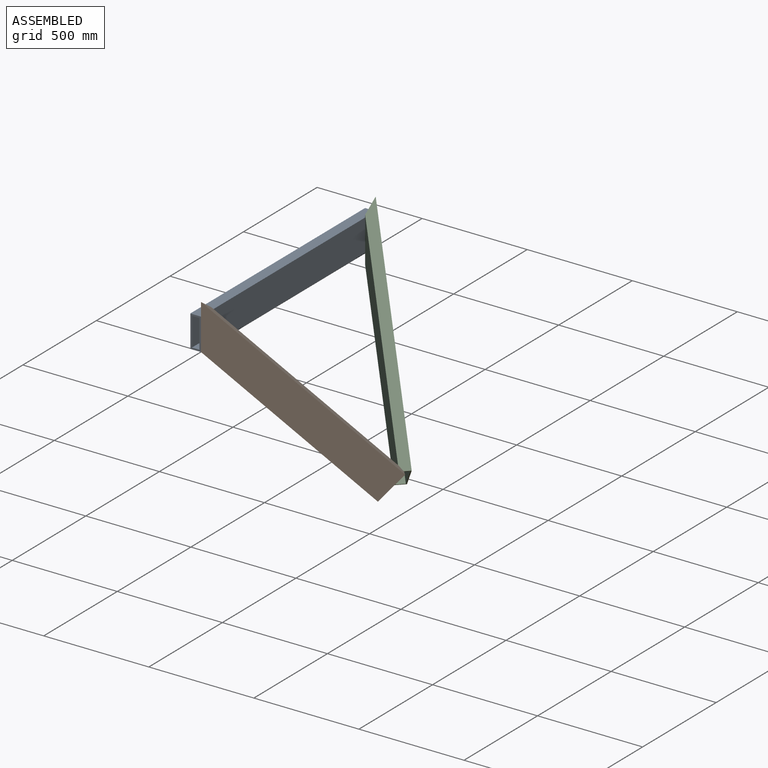
[diagram: assembled view]
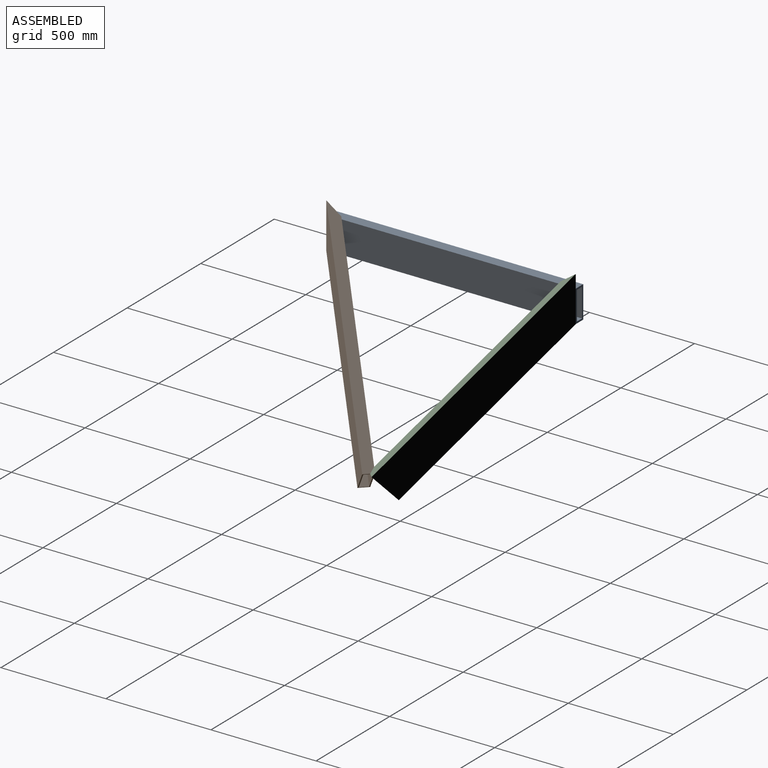
[diagram: assembled view, second angle]
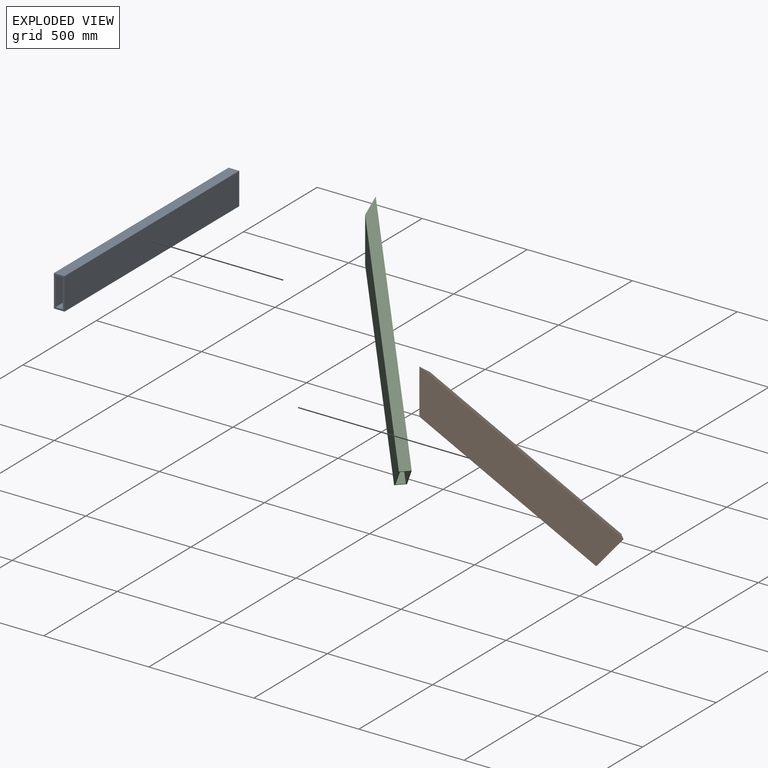
[diagram: exploded view]
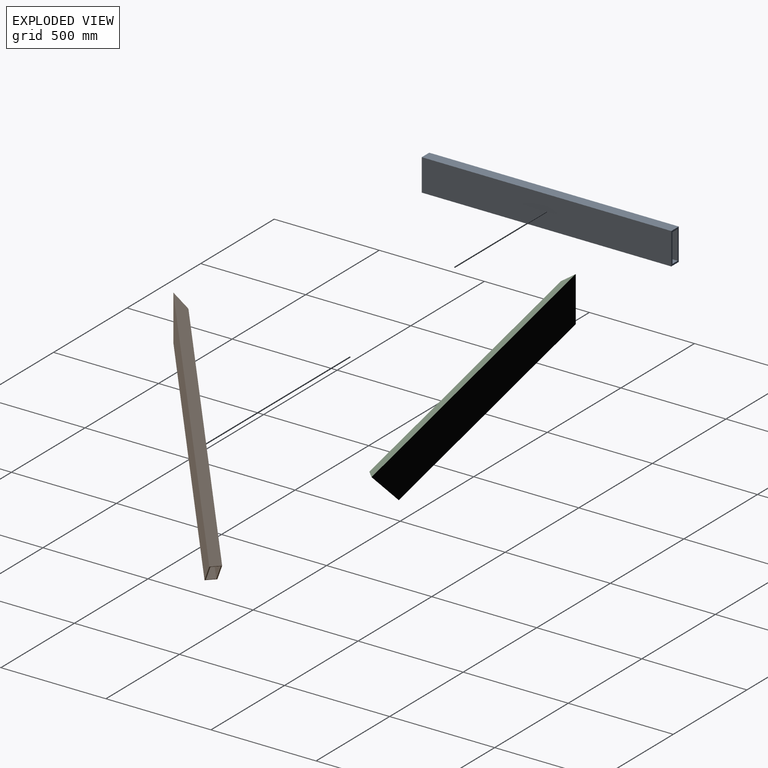
[diagram: exploded view, second angle]
ASSEMBLY  parts=3 mates=2
PART A: 10 faces, bbox 50.8x1187.5x152.4 mm
  f0: plane 152.4x50.8mm, normal (0,-1,0), area 2973.8mm2, adj f2,f3,f4,f5,f6,f7,f8,f9
  f1: plane 152.4x50.8mm, normal (0,1,0), area 2973.8mm2, adj f2,f3,f4,f5,f6,f7,f8,f9
  f2: plane 1187.45x50.8mm, normal (0,0,-1), area 60322.5mm2, adj f0,f1,f3,f5
  f3: plane 1187.45x152.4mm, normal (1,0,0), area 180967.4mm2, adj f0,f1,f2,f4
  f4: plane 1187.45x50.8mm, normal (0,0,1), area 60322.5mm2, adj f0,f1,f3,f5
  f5: plane 1187.45x152.4mm, normal (-1,0,0), area 180967.4mm2, adj f0,f1,f2,f4
  f6: plane 1187.45x34.93mm, normal (0,0,1), area 41471.7mm2, adj f0,f1,f7,f9
  f7: plane 1187.45x136.53mm, normal (-1,0,0), area 162116.6mm2, adj f0,f1,f6,f8
  f8: plane 1187.45x34.93mm, normal (0,0,-1), area 41471.7mm2, adj f0,f1,f7,f9
  f9: plane 1187.45x136.53mm, normal (1,0,0), area 162116.6mm2, adj f0,f1,f6,f8
PART B: 10 faces, bbox 50.8x1143x152.4 mm
  f0: plane 152.4x50.8mm, normal (0,-1,0), area 1844.8mm2, adj f2,f3,f4,f5,f6,f7,f8,f9
  f1: plane 224.24x152.4mm, normal (0.71,0.5,-0.5), area 3689.5mm2, adj f2,f3,f4,f5,f6,f7,f8,f9
  f2: plane 990.6x50.8mm, normal (0,0,-1), area 48497.7mm2, adj f0,f1,f3,f5
  f3: plane 1071.16x152.4mm, normal (1,0,0), area 151631.6mm2, adj f0,f1,f2,f4
  f4: plane 1143x50.8mm, normal (0,0,1), area 56239.6mm2, adj f0,f1,f3,f5
  f5: plane 1143x152.4mm, normal (-1,0,0), area 162580.3mm2, adj f0,f1,f2,f4
  f6: plane 988.63x41.28mm, normal (0,0,1), area 39600.9mm2, adj f0,f1,f7,f9
  f7: plane 1073.13x142.88mm, normal (-1,0,0), area 143116.9mm2, adj f0,f1,f6,f8
  f8: plane 1131.5x41.28mm, normal (0,0,-1), area 45498.1mm2, adj f0,f1,f7,f9
  f9: plane 1131.5x142.88mm, normal (1,0,0), area 151456.8mm2, adj f0,f1,f6,f8
PART C: 10 faces, bbox 50.8x1143x152.4 mm
  f0: plane 152.4x50.8mm, normal (0,1,0), area 1844.8mm2, adj f2,f3,f4,f5,f6,f7,f8,f9
  f1: plane 224.24x152.4mm, normal (0.71,-0.5,-0.5), area 3689.5mm2, adj f2,f3,f4,f5,f6,f7,f8,f9
  f2: plane 990.6x50.8mm, normal (0,0,-1), area 48497.7mm2, adj f0,f1,f3,f5
  f3: plane 1071.16x152.4mm, normal (1,0,0), area 151631.6mm2, adj f0,f1,f2,f4
  f4: plane 1143x50.8mm, normal (0,0,1), area 56239.6mm2, adj f0,f1,f3,f5
  f5: plane 1143x152.4mm, normal (-1,0,0), area 162580.3mm2, adj f0,f1,f2,f4
  f6: plane 988.63x41.28mm, normal (0,0,1), area 39600.9mm2, adj f0,f1,f7,f9
  f7: plane 1073.13x142.88mm, normal (-1,0,0), area 143116.9mm2, adj f0,f1,f6,f8
  f8: plane 1131.5x41.28mm, normal (0,0,-1), area 45498.1mm2, adj f0,f1,f7,f9
  f9: plane 1131.5x142.88mm, normal (1,0,0), area 151456.8mm2, adj f0,f1,f6,f8
PLACE A t=(76.61,410.14,-593.16)mm fixed
PLACE B rot(axis=(0.16,0.38,0.91),138.6deg) t=(336.29,-797.44,-507.71)mm
PLACE C rot(axis=(-0.16,0.38,-0.91),138.6deg) t=(336.29,430.28,-507.71)mm
MATE fastened A.f3 <-> C.f1  axis (1,0,0) through (392.35,410.14,-669.36)mm
MATE fastened A.f3 <-> B.f1  axis (1,0,0) through (392.35,-777.31,-669.36)mm
